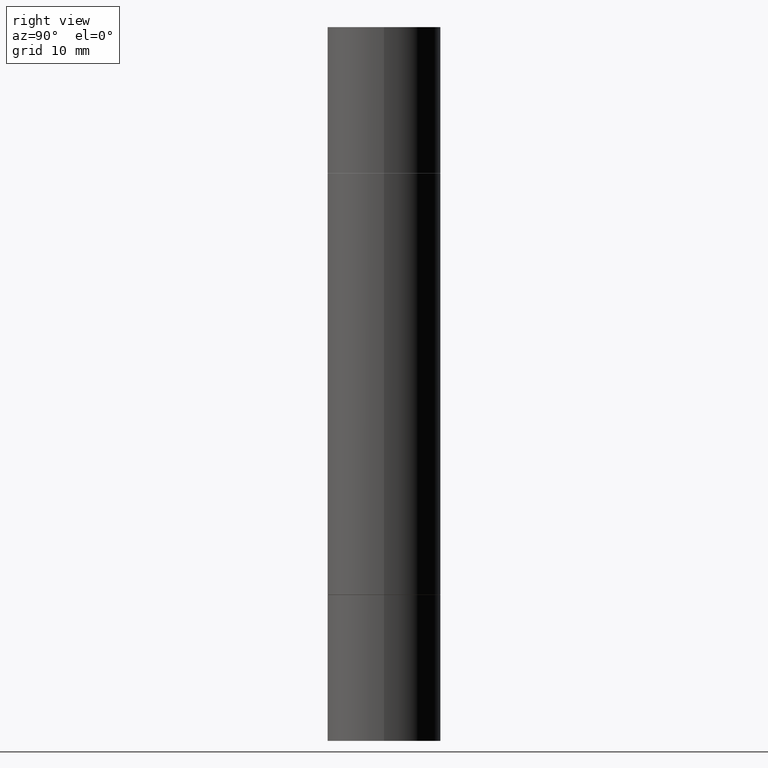
[diagram: clean part render]
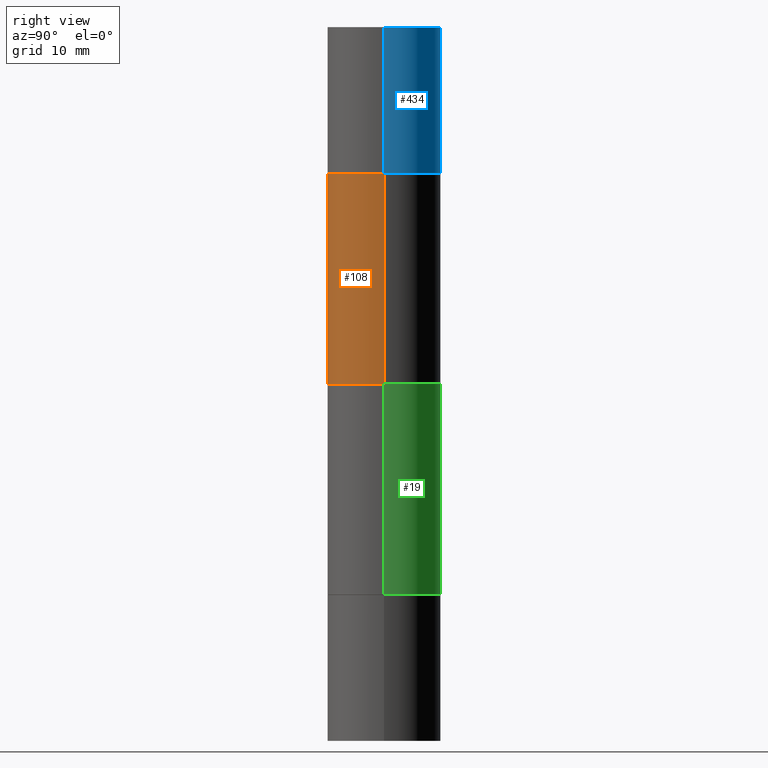
[diagram: same view with three faces highlighted in distinct colors, each labeled with its STEP entity id]
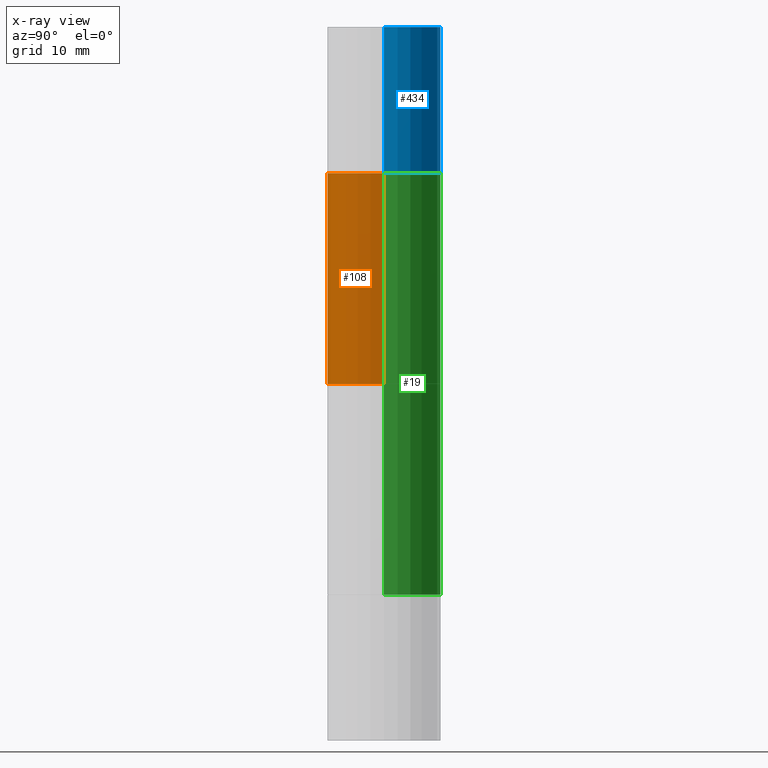
[diagram: x-ray of the same camera — body ghosted, the three highlighted faces saturated]
A machine part, right view with three faces highlighted in distinct colors.
The next image is the same camera in x-ray (body ghosted, the three faces saturated) — at least one of them is partly hidden behind the body in this view.
Their STEP definitions:

[orange] entity #108 — the highlighted cylindrical surface (partial cylindrical patch) has radius 5.5562 mm, axis along (-0, -0, -1).
#15 = CARTESIAN_POINT ( 'NONE',  ( -0.2187499999999998612, -8.102777219780461591E-15, -2.749999999999999556 ) ) ;
#70 = ORIENTED_EDGE ( 'NONE', *, *, #594, .F. ) ;
#79 = DIRECTION ( 'NONE',  ( 2.445468806185136597E-29, 3.492890411551752677E-15, 1.000000000000000000 ) ) ;
#99 = CIRCLE ( 'NONE', #475, 0.2187499999999998612 ) ;
#105 = AXIS2_PLACEMENT_3D ( 'NONE', #662, #555, #442 ) ;
#108 = ADVANCED_FACE ( 'NONE', ( #510 ), #460, .T. ) ;
#115 = DIRECTION ( 'NONE',  ( 0.000000000000000000, 1.000000000000000000, -3.746534391310991923E-15 ) ) ;
#135 = CIRCLE ( 'NONE', #145, 0.2187499999999999445 ) ;
#145 = AXIS2_PLACEMENT_3D ( 'NONE', #372, #79, #276 ) ;
#198 = DIRECTION ( 'NONE',  ( -2.445468806185136877E-29, -3.492890411551753071E-15, -1.000000000000000000 ) ) ;
#199 = EDGE_CURVE ( 'NONE', #468, #590, #530, .T. ) ;
#211 = VERTEX_POINT ( 'NONE', #373 ) ;
#243 = LINE ( 'NONE', #546, #467 ) ;
#246 = EDGE_CURVE ( 'NONE', #211, #590, #99, .T. ) ;
#270 = ORIENTED_EDGE ( 'NONE', *, *, #246, .F. ) ;
#271 = DIRECTION ( 'NONE',  ( -0.000000000000000000, -3.492185875197449130E-15, -1.000000000000000000 ) ) ;
#276 = DIRECTION ( 'NONE',  ( 1.000000000000000000, -6.982962677686266711E-15, 0.000000000000000000 ) ) ;
#318 = CARTESIAN_POINT ( 'NONE',  ( 3.362519608504561700E-29, -4.800786840909324141E-15, -1.374999999999999778 ) ) ;
#366 = VERTEX_POINT ( 'NONE', #625 ) ;
#372 = CARTESIAN_POINT ( 'NONE',  ( 5.348240279126892383E-29, -1.964559826729300003E-15, -0.5629999999999997229 ) ) ;
#373 = CARTESIAN_POINT ( 'NONE',  ( 0.2187499999999998612, -4.910196419563181534E-15, -1.374999999999999778 ) ) ;
#393 = DIRECTION ( 'NONE',  ( -2.445468806185136877E-29, -3.492890411551753071E-15, -1.000000000000000000 ) ) ;
#418 = ORIENTED_EDGE ( 'NONE', *, *, #199, .T. ) ;
#432 = CARTESIAN_POINT ( 'NONE',  ( -0.2187499999999999445, -4.638258897167772766E-16, -0.5629999999999997229 ) ) ;
#442 = DIRECTION ( 'NONE',  ( 1.000000000000000000, -6.982962677686267499E-15, 0.000000000000000000 ) ) ;
#460 = CYLINDRICAL_SURFACE ( 'NONE', #105, 0.2187499999999998612 ) ;
#467 = VECTOR ( 'NONE', #393, 39.37007874015748143 ) ;
#468 = VERTEX_POINT ( 'NONE', #432 ) ;
#475 = AXIS2_PLACEMENT_3D ( 'NONE', #318, #271, #115 ) ;
#501 = CARTESIAN_POINT ( 'NONE',  ( -0.2187499999999998612, -1.881939396806789345E-15, -1.374999999999999778 ) ) ;
#510 = FACE_OUTER_BOUND ( 'NONE', #535, .T. ) ;
#520 = EDGE_CURVE ( 'NONE', #468, #366, #135, .T. ) ;
#530 = LINE ( 'NONE', #15, #676 ) ;
#535 = EDGE_LOOP ( 'NONE', ( #545, #418, #270, #70 ) ) ;
#545 = ORIENTED_EDGE ( 'NONE', *, *, #520, .F. ) ;
#546 = CARTESIAN_POINT ( 'NONE',  ( 0.2187499999999998612, -1.113103424253685260E-14, -2.749999999999999556 ) ) ;
#555 = DIRECTION ( 'NONE',  ( -2.445468806185136597E-29, -3.492890411551752677E-15, -1.000000000000000000 ) ) ;
#590 = VERTEX_POINT ( 'NONE', #501 ) ;
#594 = EDGE_CURVE ( 'NONE', #366, #211, #243, .T. ) ;
#625 = CARTESIAN_POINT ( 'NONE',  ( 0.2187499999999999445, -3.492082912473170057E-15, -0.5629999999999997229 ) ) ;
#662 = CARTESIAN_POINT ( 'NONE',  ( 0.000000000000000000, -9.603511156792982543E-15, -2.749999999999999556 ) ) ;
#676 = VECTOR ( 'NONE', #198, 39.37007874015748143 ) ;

[blue] entity #434 — the highlighted cylindrical surface (partial cylindrical patch) has radius 5.5562 mm, axis along (-0, -0, -1).
#16 = CARTESIAN_POINT ( 'NONE',  ( 5.350685747933077986E-29, -1.961066936317747467E-15, -0.5619999999999996110 ) ) ;
#64 = CARTESIAN_POINT ( 'NONE',  ( 0.2187500000000000000, -1.525585610769535201E-15, 5.463695987328526437E-16 ) ) ;
#66 = CIRCLE ( 'NONE', #435, 0.2187500000000000000 ) ;
#69 = DIRECTION ( 'NONE',  ( 2.445468806185136597E-29, 3.492890411551752677E-15, 1.000000000000000000 ) ) ;
#95 = LINE ( 'NONE', #98, #509 ) ;
#98 = CARTESIAN_POINT ( 'NONE',  ( -0.2187500000000000000, -8.102777219780460014E-15, -2.749999999999999556 ) ) ;
#107 = VERTEX_POINT ( 'NONE', #233 ) ;
#112 = CIRCLE ( 'NONE', #415, 0.2187500000000000000 ) ;
#119 = FACE_OUTER_BOUND ( 'NONE', #159, .T. ) ;
#131 = DIRECTION ( 'NONE',  ( 1.000000000000000000, -6.982962677686262766E-15, 0.000000000000000000 ) ) ;
#159 = EDGE_LOOP ( 'NONE', ( #284, #595, #632, #578 ) ) ;
#204 = VERTEX_POINT ( 'NONE', #315 ) ;
#233 = CARTESIAN_POINT ( 'NONE',  ( -0.2187500000000000000, 5.211692063408171100E-16, -0.5619999999999996110 ) ) ;
#242 = CYLINDRICAL_SURFACE ( 'NONE', #600, 0.2187500000000000000 ) ;
#277 = DIRECTION ( 'NONE',  ( -2.445468806185136877E-29, -3.492890411551753071E-15, -1.000000000000000000 ) ) ;
#284 = ORIENTED_EDGE ( 'NONE', *, *, #657, .F. ) ;
#304 = DIRECTION ( 'NONE',  ( -2.445468806185136877E-29, -3.492890411551753071E-15, -1.000000000000000000 ) ) ;
#315 = CARTESIAN_POINT ( 'NONE',  ( -0.2187500000000000000, 5.211692063408169128E-16, 5.463695987328561936E-16 ) ) ;
#359 = VERTEX_POINT ( 'NONE', #64 ) ;
#415 = AXIS2_PLACEMENT_3D ( 'NONE', #16, #69, #534 ) ;
#421 = EDGE_CURVE ( 'NONE', #359, #204, #66, .T. ) ;
#431 = CARTESIAN_POINT ( 'NONE',  ( 0.000000000000000000, -9.603511156792982543E-15, -2.749999999999999556 ) ) ;
#434 = ADVANCED_FACE ( 'NONE', ( #119 ), #242, .T. ) ;
#435 = AXIS2_PLACEMENT_3D ( 'NONE', #579, #652, #486 ) ;
#458 = EDGE_CURVE ( 'NONE', #359, #658, #484, .T. ) ;
#484 = LINE ( 'NONE', #528, #634 ) ;
#486 = DIRECTION ( 'NONE',  ( 1.000000000000000000, -6.982962677686266711E-15, 0.000000000000000000 ) ) ;
#487 = EDGE_CURVE ( 'NONE', #658, #107, #112, .T. ) ;
#508 = CARTESIAN_POINT ( 'NONE',  ( 0.2187500000000000000, -3.488590022061618704E-15, -0.5619999999999996110 ) ) ;
#509 = VECTOR ( 'NONE', #304, 39.37007874015748143 ) ;
#528 = CARTESIAN_POINT ( 'NONE',  ( 0.2187500000000000000, -1.113103424253685260E-14, -2.749999999999999556 ) ) ;
#534 = DIRECTION ( 'NONE',  ( 1.000000000000000000, -6.982962677686267499E-15, 0.000000000000000000 ) ) ;
#539 = DIRECTION ( 'NONE',  ( -2.445468806185136597E-29, -3.492890411551752677E-15, -1.000000000000000000 ) ) ;
#578 = ORIENTED_EDGE ( 'NONE', *, *, #487, .T. ) ;
#579 = CARTESIAN_POINT ( 'NONE',  ( 6.725039217009124520E-29, 1.937474974335603146E-18, 5.463695987328526437E-16 ) ) ;
#595 = ORIENTED_EDGE ( 'NONE', *, *, #421, .F. ) ;
#600 = AXIS2_PLACEMENT_3D ( 'NONE', #431, #539, #131 ) ;
#632 = ORIENTED_EDGE ( 'NONE', *, *, #458, .T. ) ;
#634 = VECTOR ( 'NONE', #277, 39.37007874015748143 ) ;
#652 = DIRECTION ( 'NONE',  ( 2.445468806185136597E-29, 3.492890411551752677E-15, 1.000000000000000000 ) ) ;
#657 = EDGE_CURVE ( 'NONE', #204, #107, #95, .T. ) ;
#658 = VERTEX_POINT ( 'NONE', #508 ) ;

[green] entity #19 — the highlighted cylindrical surface (partial cylindrical patch) has radius 5.5562 mm, axis along (-0, -0, -1).
#8 = EDGE_CURVE ( 'NONE', #309, #414, #149, .T. ) ;
#19 = ADVANCED_FACE ( 'NONE', ( #32 ), #548, .T. ) ;
#32 = FACE_OUTER_BOUND ( 'NONE', #395, .T. ) ;
#43 = DIRECTION ( 'NONE',  ( 1.000000000000000000, -6.982962677686269077E-15, 0.000000000000000000 ) ) ;
#49 = EDGE_CURVE ( 'NONE', #414, #226, #427, .T. ) ;
#68 = ORIENTED_EDGE ( 'NONE', *, *, #582, .F. ) ;
#78 = ORIENTED_EDGE ( 'NONE', *, *, #8, .T. ) ;
#87 = CARTESIAN_POINT ( 'NONE',  ( 0.000000000000000000, -9.603511156792982543E-15, -2.749999999999999556 ) ) ;
#88 = AXIS2_PLACEMENT_3D ( 'NONE', #148, #559, #556 ) ;
#128 = CARTESIAN_POINT ( 'NONE',  ( -0.2187499999999999445, -4.638258897167772766E-16, -0.5629999999999997229 ) ) ;
#132 = VERTEX_POINT ( 'NONE', #128 ) ;
#141 = CARTESIAN_POINT ( 'NONE',  ( 5.348240279126892383E-29, -7.635869688049957955E-15, -2.186999999999999833 ) ) ;
#148 = CARTESIAN_POINT ( 'NONE',  ( 5.348240279126892383E-29, -1.964559826729300003E-15, -0.5629999999999997229 ) ) ;
#149 = LINE ( 'NONE', #666, #247 ) ;
#154 = VECTOR ( 'NONE', #526, 39.37007874015748143 ) ;
#209 = CARTESIAN_POINT ( 'NONE',  ( 0.2187499999999999445, -3.492082912473170057E-15, -0.5629999999999997229 ) ) ;
#226 = VERTEX_POINT ( 'NONE', #469 ) ;
#247 = VECTOR ( 'NONE', #503, 39.37007874015748143 ) ;
#248 = DIRECTION ( 'NONE',  ( -2.445468806185136597E-29, -3.492890411551752677E-15, -1.000000000000000000 ) ) ;
#257 = CARTESIAN_POINT ( 'NONE',  ( 0.2187499999999999445, -9.163392773793829586E-15, -2.186999999999999833 ) ) ;
#266 = AXIS2_PLACEMENT_3D ( 'NONE', #141, #670, #43 ) ;
#309 = VERTEX_POINT ( 'NONE', #209 ) ;
#314 = ORIENTED_EDGE ( 'NONE', *, *, #340, .F. ) ;
#340 = EDGE_CURVE ( 'NONE', #132, #226, #407, .T. ) ;
#374 = CIRCLE ( 'NONE', #88, 0.2187499999999999445 ) ;
#395 = EDGE_LOOP ( 'NONE', ( #314, #68, #78, #650 ) ) ;
#406 = AXIS2_PLACEMENT_3D ( 'NONE', #87, #248, #437 ) ;
#407 = LINE ( 'NONE', #524, #154 ) ;
#414 = VERTEX_POINT ( 'NONE', #257 ) ;
#427 = CIRCLE ( 'NONE', #266, 0.2187499999999999445 ) ;
#437 = DIRECTION ( 'NONE',  ( 1.000000000000000000, -6.982962677686267499E-15, 0.000000000000000000 ) ) ;
#469 = CARTESIAN_POINT ( 'NONE',  ( -0.2187499999999999445, -3.300052903896800034E-15, -2.186999999999999833 ) ) ;
#503 = DIRECTION ( 'NONE',  ( -2.445468806185136877E-29, -3.492890411551753071E-15, -1.000000000000000000 ) ) ;
#524 = CARTESIAN_POINT ( 'NONE',  ( -0.2187499999999998612, -8.102777219780461591E-15, -2.749999999999999556 ) ) ;
#526 = DIRECTION ( 'NONE',  ( -2.445468806185136877E-29, -3.492890411551753071E-15, -1.000000000000000000 ) ) ;
#548 = CYLINDRICAL_SURFACE ( 'NONE', #406, 0.2187499999999998612 ) ;
#556 = DIRECTION ( 'NONE',  ( 1.000000000000000000, -6.982962677686266711E-15, 0.000000000000000000 ) ) ;
#559 = DIRECTION ( 'NONE',  ( 2.445468806185136597E-29, 3.492890411551752677E-15, 1.000000000000000000 ) ) ;
#582 = EDGE_CURVE ( 'NONE', #309, #132, #374, .T. ) ;
#650 = ORIENTED_EDGE ( 'NONE', *, *, #49, .T. ) ;
#666 = CARTESIAN_POINT ( 'NONE',  ( 0.2187499999999998612, -1.113103424253685260E-14, -2.749999999999999556 ) ) ;
#670 = DIRECTION ( 'NONE',  ( -2.445468806185136597E-29, 3.491481338843145583E-15, 1.000000000000000000 ) ) ;